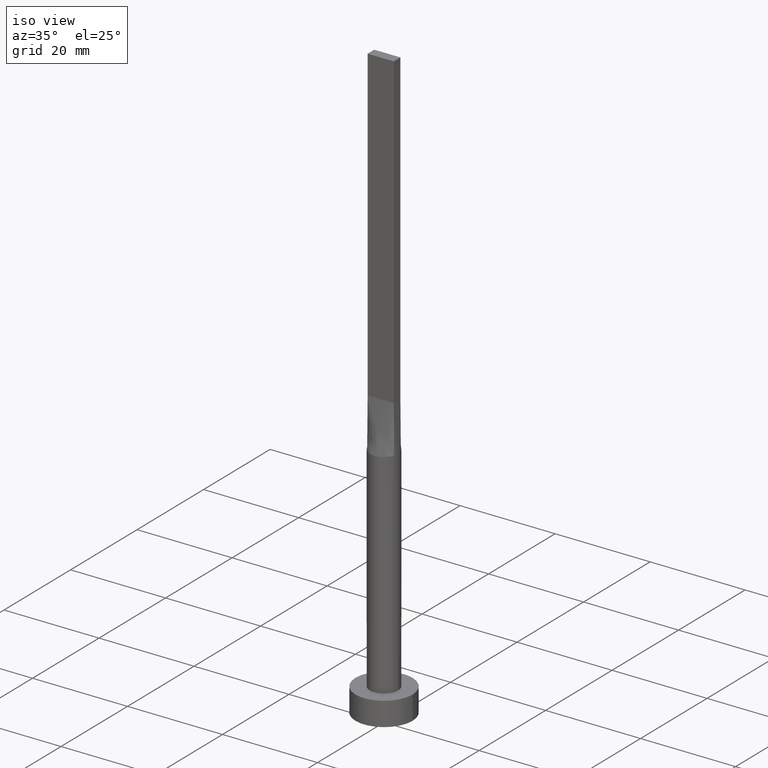
[diagram: clean part render]
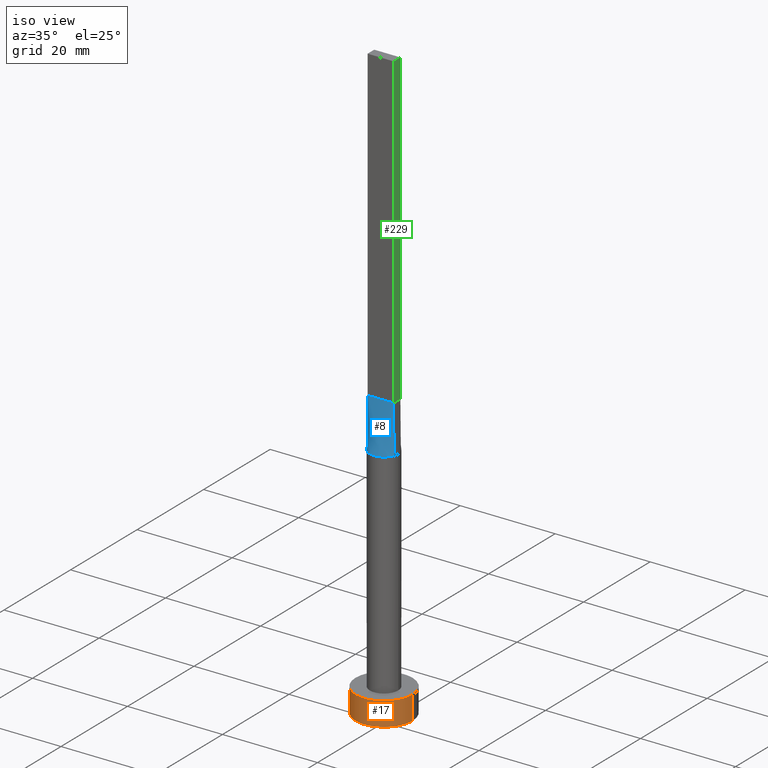
[diagram: same view with three faces highlighted in distinct colors, each labeled with its STEP entity id]
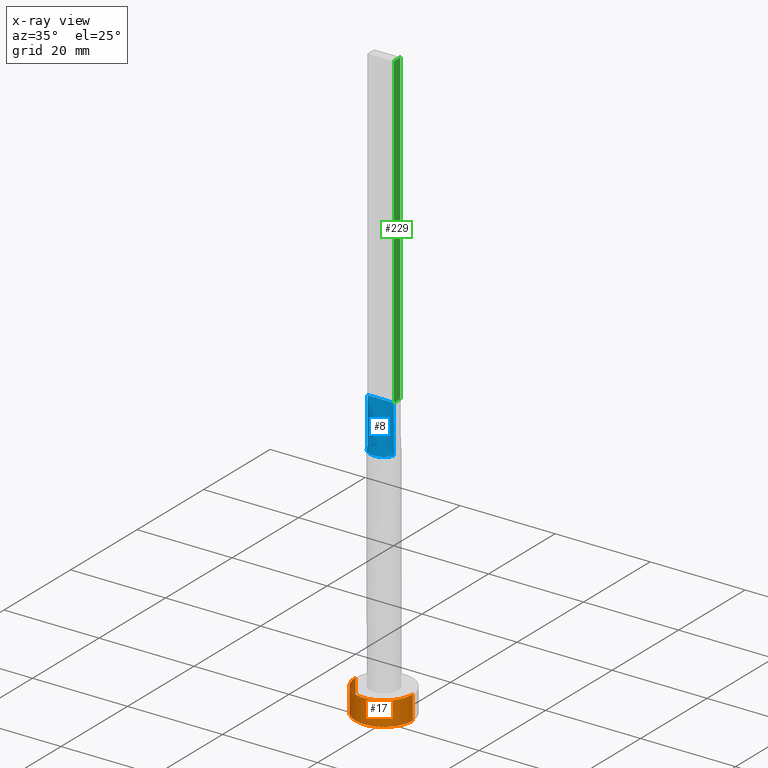
[diagram: x-ray of the same camera — body ghosted, the three highlighted faces saturated]
A machine part, iso view with three faces highlighted in distinct colors.
The next image is the same camera in x-ray (body ghosted, the three faces saturated) — at least one of them is partly hidden behind the body in this view.
Their STEP definitions:

[orange] entity #17 — the highlighted cylindrical surface (edge-blend (fillet) strip) has radius 6 mm, axis along (-0, -0, -1).
#5 = DIRECTION ( 'NONE',  ( 0.000000000000000000, 0.000000000000000000, 1.000000000000000000 ) ) ;
#17 = ADVANCED_FACE ( 'NONE', ( #88 ), #264, .T. ) ;
#23 = VERTEX_POINT ( 'NONE', #453 ) ;
#35 = LINE ( 'NONE', #201, #376 ) ;
#63 = CARTESIAN_POINT ( 'NONE',  ( 6.000000000000000888, 7.347880794884120722E-16, 5.000000000000000000 ) ) ;
#66 = DIRECTION ( 'NONE',  ( -0.000000000000000000, -0.000000000000000000, -1.000000000000000000 ) ) ;
#80 = CIRCLE ( 'NONE', #410, 6.000000000000000888 ) ;
#88 = FACE_OUTER_BOUND ( 'NONE', #326, .T. ) ;
#119 = VECTOR ( 'NONE', #382, 1000.000000000000000 ) ;
#128 = EDGE_CURVE ( 'NONE', #564, #197, #80, .T. ) ;
#167 = VERTEX_POINT ( 'NONE', #63 ) ;
#197 = VERTEX_POINT ( 'NONE', #232 ) ;
#201 = CARTESIAN_POINT ( 'NONE',  ( 6.000000000000000888, 7.347880794884120722E-16, 5.000000000000000000 ) ) ;
#211 = LINE ( 'NONE', #259, #119 ) ;
#232 = CARTESIAN_POINT ( 'NONE',  ( 6.000000000000000888, 7.347880794884120722E-16, 0.000000000000000000 ) ) ;
#250 = EDGE_CURVE ( 'NONE', #167, #197, #35, .T. ) ;
#257 = EDGE_CURVE ( 'NONE', #23, #564, #211, .T. ) ;
#259 = CARTESIAN_POINT ( 'NONE',  ( -6.000000000000000888, 0.000000000000000000, 5.000000000000000000 ) ) ;
#264 = CYLINDRICAL_SURFACE ( 'NONE', #539, 6.000000000000000888 ) ;
#290 = ORIENTED_EDGE ( 'NONE', *, *, #257, .T. ) ;
#304 = DIRECTION ( 'NONE',  ( -1.000000000000000000, 0.000000000000000000, 0.000000000000000000 ) ) ;
#318 = ORIENTED_EDGE ( 'NONE', *, *, #250, .F. ) ;
#320 = CARTESIAN_POINT ( 'NONE',  ( 0.000000000000000000, 0.000000000000000000, 0.000000000000000000 ) ) ;
#326 = EDGE_LOOP ( 'NONE', ( #318, #506, #290, #348 ) ) ;
#348 = ORIENTED_EDGE ( 'NONE', *, *, #128, .T. ) ;
#359 = CARTESIAN_POINT ( 'NONE',  ( -6.000000000000000888, 0.000000000000000000, 0.000000000000000000 ) ) ;
#367 = CIRCLE ( 'NONE', #472, 6.000000000000000888 ) ;
#376 = VECTOR ( 'NONE', #66, 1000.000000000000000 ) ;
#382 = DIRECTION ( 'NONE',  ( -0.000000000000000000, -0.000000000000000000, -1.000000000000000000 ) ) ;
#410 = AXIS2_PLACEMENT_3D ( 'NONE', #320, #555, #413 ) ;
#413 = DIRECTION ( 'NONE',  ( 1.000000000000000000, 0.000000000000000000, 0.000000000000000000 ) ) ;
#440 = CARTESIAN_POINT ( 'NONE',  ( 0.000000000000000000, 0.000000000000000000, 5.000000000000000000 ) ) ;
#447 = DIRECTION ( 'NONE',  ( 1.000000000000000000, 0.000000000000000000, 0.000000000000000000 ) ) ;
#453 = CARTESIAN_POINT ( 'NONE',  ( -6.000000000000000888, 0.000000000000000000, 5.000000000000000000 ) ) ;
#472 = AXIS2_PLACEMENT_3D ( 'NONE', #532, #5, #447 ) ;
#488 = DIRECTION ( 'NONE',  ( -0.000000000000000000, -0.000000000000000000, -1.000000000000000000 ) ) ;
#506 = ORIENTED_EDGE ( 'NONE', *, *, #548, .F. ) ;
#532 = CARTESIAN_POINT ( 'NONE',  ( 0.000000000000000000, 0.000000000000000000, 5.000000000000000000 ) ) ;
#539 = AXIS2_PLACEMENT_3D ( 'NONE', #440, #488, #304 ) ;
#548 = EDGE_CURVE ( 'NONE', #23, #167, #367, .T. ) ;
#555 = DIRECTION ( 'NONE',  ( 0.000000000000000000, 0.000000000000000000, 1.000000000000000000 ) ) ;
#564 = VERTEX_POINT ( 'NONE', #359 ) ;

[blue] entity #8 — the highlighted face is a freeform B-spline surface patch.
#4 = CARTESIAN_POINT ( 'NONE',  ( -0.9166666666666664076, -0.9999999999999995559, 60.00000000000000000 ) ) ;
#8 = ADVANCED_FACE ( 'NONE', ( #210 ), #292, .T. ) ;
#27 = VERTEX_POINT ( 'NONE', #219 ) ;
#30 = LINE ( 'NONE', #70, #339 ) ;
#39 = CARTESIAN_POINT ( 'NONE',  ( -1.145833333333333037, -0.9999999999999995559, 60.00000000000000000 ) ) ;
#40 = EDGE_CURVE ( 'NONE', #477, #27, #534, .T. ) ;
#44 = CARTESIAN_POINT ( 'NONE',  ( -2.520833333333333037, -0.9999999999999993339, 60.00000000000000000 ) ) ;
#48 = EDGE_CURVE ( 'NONE', #373, #477, #252, .T. ) ;
#49 = CARTESIAN_POINT ( 'NONE',  ( -1.604166666666666519, -0.9999999999999995559, 60.00000000000000000 ) ) ;
#52 = CARTESIAN_POINT ( 'NONE',  ( 2.819430526142641558, -1.025247683279451261, 49.99999999999999289 ) ) ;
#61 = EDGE_LOOP ( 'NONE', ( #375, #65, #296, #137 ) ) ;
#65 = ORIENTED_EDGE ( 'NONE', *, *, #40, .T. ) ;
#70 = CARTESIAN_POINT ( 'NONE',  ( -2.750000000000000000, -0.9999999999999993339, 60.00000000000000000 ) ) ;
#72 = CARTESIAN_POINT ( 'NONE',  ( -2.750000000000000000, -0.9999999999999993339, 60.00000000000000000 ) ) ;
#84 = CARTESIAN_POINT ( 'NONE',  ( 1.145833333333333703, -0.9999999999999995559, 60.00000000000000000 ) ) ;
#86 = CARTESIAN_POINT ( 'NONE',  ( 2.750000000000000000, -0.9999999999999997780, 60.00000000000000000 ) ) ;
#91 = CARTESIAN_POINT ( 'NONE',  ( -0.2291666666666662966, -0.9999999999999995559, 60.00000000000000000 ) ) ;
#123 = CARTESIAN_POINT ( 'NONE',  ( 2.115507543051068140, -2.149870311632976705, 49.99999999999997868 ) ) ;
#125 = CARTESIAN_POINT ( 'NONE',  ( 2.819380270465311700, -1.025229189260112417, 49.99999999999999289 ) ) ;
#127 = CARTESIAN_POINT ( 'NONE',  ( 0.6998073349918603192, -2.936959335800557902, 50.00000000000000000 ) ) ;
#130 = CARTESIAN_POINT ( 'NONE',  ( 0.4583333333333337034, -0.9999999999999995559, 60.00000000000000000 ) ) ;
#132 = CARTESIAN_POINT ( 'NONE',  ( 2.520833333333333037, -1.000000000000000000, 60.00000000000000000 ) ) ;
#137 = ORIENTED_EDGE ( 'NONE', *, *, #335, .T. ) ;
#169 = CARTESIAN_POINT ( 'NONE',  ( 0.9166666666666669627, -0.9999999999999995559, 60.00000000000000000 ) ) ;
#175 = CARTESIAN_POINT ( 'NONE',  ( -2.819380270465311700, -1.025229189260111973, 49.99999999999999289 ) ) ;
#178 = DIRECTION ( 'NONE',  ( -0.006937837988376364777, 0.002522850177591326286, 0.9999727504442450510 ) ) ;
#206 = AXIS2_PLACEMENT_3D ( 'NONE', #494, #217, #361 ) ;
#207 = CARTESIAN_POINT ( 'NONE',  ( -2.750000000000000000, -0.9999999999999993339, 60.00000000000000000 ) ) ;
#210 = FACE_OUTER_BOUND ( 'NONE', #61, .T. ) ;
#213 = CARTESIAN_POINT ( 'NONE',  ( 2.739088299662391979, -1.246032108968142982, 50.00000000000000711 ) ) ;
#217 = DIRECTION ( 'NONE',  ( 0.000000000000000000, 0.000000000000000000, 1.000000000000000000 ) ) ;
#219 = CARTESIAN_POINT ( 'NONE',  ( 2.750000000000000000, -0.9999999999999997780, 60.00000000000000000 ) ) ;
#240 = LINE ( 'NONE', #336, #452 ) ;
#252 = CIRCLE ( 'NONE', #206, 3.000000000000000444 ) ;
#292 = B_SPLINE_SURFACE_WITH_KNOTS ( 'NONE', 3, 1, ( 
 ( #175, #207 ),
 ( #450, #44 ),
 ( #407, #399 ),
 ( #446, #353 ),
 ( #354, #49 ),
 ( #498, #39 ),
 ( #309, #4 ),
 ( #404, #358 ),
 ( #397, #91 ),
 ( #537, #576 ),
 ( #127, #130 ),
 ( #579, #169 ),
 ( #528, #84 ),
 ( #123, #496 ),
 ( #531, #540 ),
 ( #301, #401 ),
 ( #213, #132 ),
 ( #125, #86 ) ),
 .UNSPECIFIED., .F., .F., .F.,
 ( 4, 2, 2, 2, 2, 2, 2, 2, 4 ),
 ( 2, 2 ),
 ( 0.000000000000000000, 0.1250000000000000000, 0.2500000000000000000, 0.3750000000000000000, 0.5000000000000000000, 0.6250000000000000000, 0.7500000000000000000, 0.8750000000000000000, 1.000000000000000000 ),
 ( 0.000000000000000000, 1.000000000000000000 ),
 .UNSPECIFIED. ) ;
#295 = VERTEX_POINT ( 'NONE', #72 ) ;
#296 = ORIENTED_EDGE ( 'NONE', *, *, #411, .F. ) ;
#301 = CARTESIAN_POINT ( 'NONE',  ( 2.625980160873452984, -1.476334031700886618, 50.00000000000000711 ) ) ;
#306 = CARTESIAN_POINT ( 'NONE',  ( 2.784690135232656072, -1.012614594630056208, 54.99999999999999289 ) ) ;
#309 = CARTESIAN_POINT ( 'NONE',  ( -1.338960936578150518, -2.706038443291638007, 50.00000000000000000 ) ) ;
#310 = VECTOR ( 'NONE', #178, 1000.000000000000227 ) ;
#319 = DIRECTION ( 'NONE',  ( 1.000000000000000000, -7.885106708985487801E-17, 0.000000000000000000 ) ) ;
#335 = EDGE_CURVE ( 'NONE', #295, #373, #240, .T. ) ;
#336 = CARTESIAN_POINT ( 'NONE',  ( -2.784690135232656072, -1.012614594630055764, 54.99999999999999289 ) ) ;
#339 = VECTOR ( 'NONE', #319, 1000.000000000000000 ) ;
#353 = CARTESIAN_POINT ( 'NONE',  ( -1.833333333333333037, -0.9999999999999995559, 60.00000000000000000 ) ) ;
#354 = CARTESIAN_POINT ( 'NONE',  ( -2.115507543051069472, -2.149870311632975373, 49.99999999999999289 ) ) ;
#358 = CARTESIAN_POINT ( 'NONE',  ( -0.4583333333333330373, -0.9999999999999995559, 60.00000000000000000 ) ) ;
#361 = DIRECTION ( 'NONE',  ( 1.000000000000000000, 0.000000000000000000, 0.000000000000000000 ) ) ;
#373 = VERTEX_POINT ( 'NONE', #469 ) ;
#375 = ORIENTED_EDGE ( 'NONE', *, *, #48, .T. ) ;
#397 = CARTESIAN_POINT ( 'NONE',  ( -0.3502136323054380052, -3.000000000000000888, 50.00000000000000000 ) ) ;
#399 = CARTESIAN_POINT ( 'NONE',  ( -2.291666666666666519, -0.9999999999999995559, 60.00000000000000000 ) ) ;
#400 = DIRECTION ( 'NONE',  ( -0.006937837988376364777, -0.002522850177591326286, -0.9999727504442450510 ) ) ;
#401 = CARTESIAN_POINT ( 'NONE',  ( 2.291666666666666519, -1.000000000000000000, 60.00000000000000000 ) ) ;
#404 = CARTESIAN_POINT ( 'NONE',  ( -0.6998073349918614294, -2.936959335800558346, 49.99999999999998579 ) ) ;
#407 = CARTESIAN_POINT ( 'NONE',  ( -2.625980160873452540, -1.476334031700885507, 49.99999999999998579 ) ) ;
#411 = EDGE_CURVE ( 'NONE', #295, #27, #30, .T. ) ;
#446 = CARTESIAN_POINT ( 'NONE',  ( -2.314486317179578645, -1.928337902455806496, 49.99999999999998579 ) ) ;
#450 = CARTESIAN_POINT ( 'NONE',  ( -2.739088299662391979, -1.246032108968140983, 49.99999999999999289 ) ) ;
#452 = VECTOR ( 'NONE', #400, 1000.000000000000227 ) ;
#469 = CARTESIAN_POINT ( 'NONE',  ( -2.819413526938078896, -1.025241406939938926, 49.99999999999999289 ) ) ;
#477 = VERTEX_POINT ( 'NONE', #52 ) ;
#494 = CARTESIAN_POINT ( 'NONE',  ( 0.000000000000000000, 0.000000000000000000, 49.99999999999999289 ) ) ;
#496 = CARTESIAN_POINT ( 'NONE',  ( 1.604166666666666963, -0.9999999999999997780, 60.00000000000000000 ) ) ;
#498 = CARTESIAN_POINT ( 'NONE',  ( -1.627925520694712525, -2.539128397820340055, 49.99999999999998579 ) ) ;
#528 = CARTESIAN_POINT ( 'NONE',  ( 1.627925520694712080, -2.539128397820341831, 50.00000000000000000 ) ) ;
#531 = CARTESIAN_POINT ( 'NONE',  ( 2.314486317179579533, -1.928337902455807606, 50.00000000000000000 ) ) ;
#534 = LINE ( 'NONE', #306, #310 ) ;
#537 = CARTESIAN_POINT ( 'NONE',  ( 0.3502136323054372835, -3.000000000000000444, 49.99999999999998579 ) ) ;
#540 = CARTESIAN_POINT ( 'NONE',  ( 1.833333333333333481, -1.000000000000000000, 60.00000000000000000 ) ) ;
#576 = CARTESIAN_POINT ( 'NONE',  ( 0.2291666666666670460, -0.9999999999999995559, 60.00000000000000000 ) ) ;
#579 = CARTESIAN_POINT ( 'NONE',  ( 1.338960936578149630, -2.706038443291638007, 49.99999999999998579 ) ) ;

[green] entity #229 — the highlighted planar face has unit normal (-1, -0, 0).
#3 = VECTOR ( 'NONE', #481, 1000.000000000000000 ) ;
#22 = VECTOR ( 'NONE', #152, 1000.000000000000000 ) ;
#24 = LINE ( 'NONE', #209, #3 ) ;
#27 = VERTEX_POINT ( 'NONE', #219 ) ;
#79 = ORIENTED_EDGE ( 'NONE', *, *, #389, .F. ) ;
#83 = PLANE ( 'NONE',  #314 ) ;
#103 = FACE_OUTER_BOUND ( 'NONE', #553, .T. ) ;
#112 = CARTESIAN_POINT ( 'NONE',  ( 2.750000000000000000, -0.9999999999999997780, 125.0000000000000000 ) ) ;
#152 = DIRECTION ( 'NONE',  ( -2.168404344971008868E-16, 1.000000000000000000, 0.000000000000000000 ) ) ;
#161 = ORIENTED_EDGE ( 'NONE', *, *, #525, .T. ) ;
#209 = CARTESIAN_POINT ( 'NONE',  ( 2.749999999999999556, 1.000000000000000000, 60.00000000000000000 ) ) ;
#212 = EDGE_CURVE ( 'NONE', #350, #27, #291, .T. ) ;
#219 = CARTESIAN_POINT ( 'NONE',  ( 2.750000000000000000, -0.9999999999999997780, 60.00000000000000000 ) ) ;
#229 = ADVANCED_FACE ( 'NONE', ( #103 ), #83, .F. ) ;
#235 = CARTESIAN_POINT ( 'NONE',  ( 2.749999999999999556, 1.000000000000000000, 125.0000000000000000 ) ) ;
#236 = VECTOR ( 'NONE', #386, 1000.000000000000000 ) ;
#246 = LINE ( 'NONE', #302, #22 ) ;
#275 = ORIENTED_EDGE ( 'NONE', *, *, #212, .T. ) ;
#291 = LINE ( 'NONE', #394, #236 ) ;
#302 = CARTESIAN_POINT ( 'NONE',  ( 2.750000000000000000, -0.9999999999999997780, 125.0000000000000000 ) ) ;
#303 = VECTOR ( 'NONE', #523, 1000.000000000000000 ) ;
#312 = EDGE_CURVE ( 'NONE', #515, #384, #430, .T. ) ;
#314 = AXIS2_PLACEMENT_3D ( 'NONE', #112, #562, #445 ) ;
#346 = CARTESIAN_POINT ( 'NONE',  ( 2.749999999999999556, 1.000000000000000000, 125.0000000000000000 ) ) ;
#350 = VERTEX_POINT ( 'NONE', #390 ) ;
#384 = VERTEX_POINT ( 'NONE', #521 ) ;
#386 = DIRECTION ( 'NONE',  ( -0.000000000000000000, -0.000000000000000000, -1.000000000000000000 ) ) ;
#389 = EDGE_CURVE ( 'NONE', #350, #515, #246, .T. ) ;
#390 = CARTESIAN_POINT ( 'NONE',  ( 2.750000000000000000, -0.9999999999999997780, 125.0000000000000000 ) ) ;
#394 = CARTESIAN_POINT ( 'NONE',  ( 2.750000000000000000, -0.9999999999999997780, 125.0000000000000000 ) ) ;
#414 = ORIENTED_EDGE ( 'NONE', *, *, #312, .F. ) ;
#430 = LINE ( 'NONE', #346, #303 ) ;
#445 = DIRECTION ( 'NONE',  ( 2.168404344971008621E-16, -1.000000000000000000, 0.000000000000000000 ) ) ;
#481 = DIRECTION ( 'NONE',  ( -2.168404344971008868E-16, 1.000000000000000000, -0.000000000000000000 ) ) ;
#515 = VERTEX_POINT ( 'NONE', #235 ) ;
#521 = CARTESIAN_POINT ( 'NONE',  ( 2.749999999999999556, 1.000000000000000000, 60.00000000000000000 ) ) ;
#523 = DIRECTION ( 'NONE',  ( -0.000000000000000000, -0.000000000000000000, -1.000000000000000000 ) ) ;
#525 = EDGE_CURVE ( 'NONE', #27, #384, #24, .T. ) ;
#553 = EDGE_LOOP ( 'NONE', ( #161, #414, #79, #275 ) ) ;
#562 = DIRECTION ( 'NONE',  ( -1.000000000000000000, -2.168404344971008621E-16, 0.000000000000000000 ) ) ;